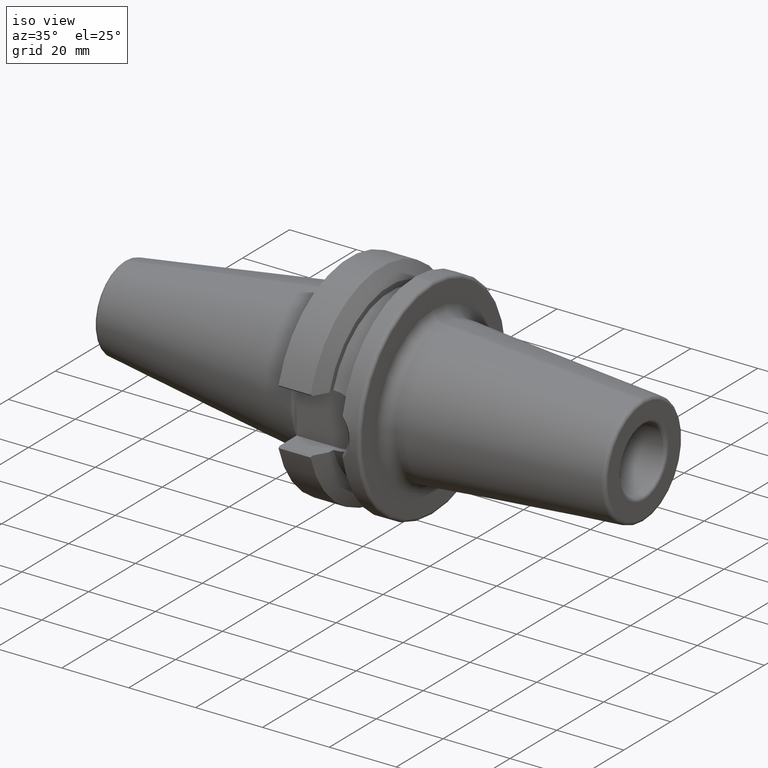
[diagram: clean part render]
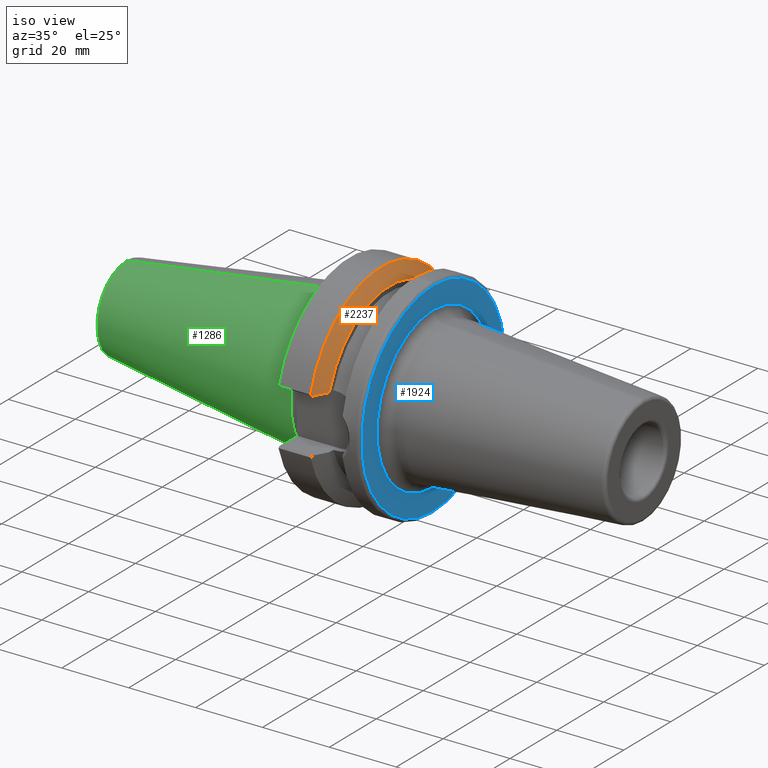
[diagram: same view with three faces highlighted in distinct colors, each labeled with its STEP entity id]
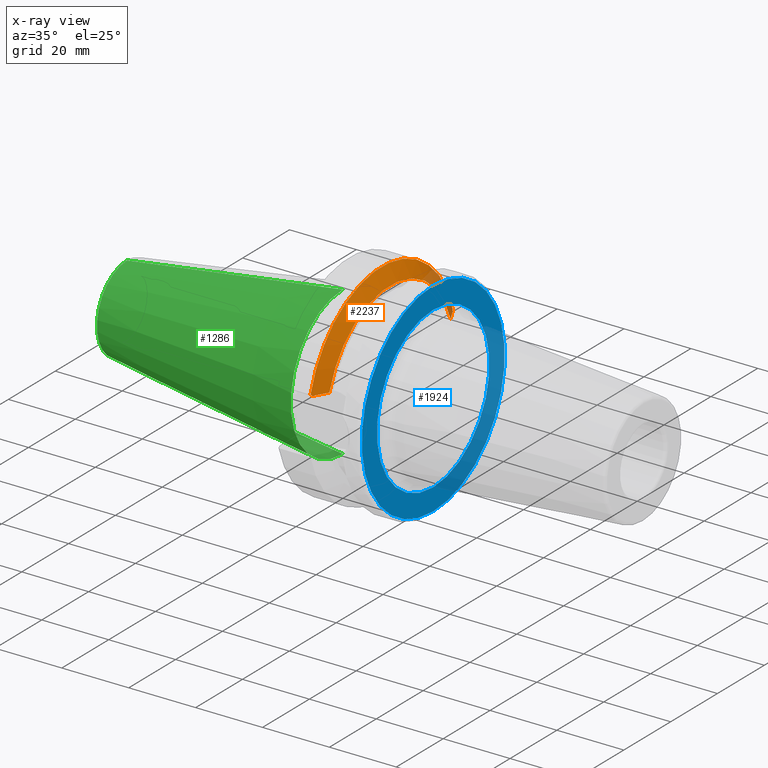
[diagram: x-ray of the same camera — body ghosted, the three highlighted faces saturated]
A machine part, iso view with three faces highlighted in distinct colors.
The next image is the same camera in x-ray (body ghosted, the three faces saturated) — at least one of them is partly hidden behind the body in this view.
Their STEP definitions:

[orange] entity #2237 — the highlighted conical surface has half-angle 60 deg.
#742=CARTESIAN_POINT('',(1.187809346105E1,-2.99E1,8.05E0));
#743=CARTESIAN_POINT('',(1.213608092362E1,-2.943724098956E1,8.05E0));
#744=CARTESIAN_POINT('',(1.264468361145E1,-2.852349489558E1,8.05E0));
#745=CARTESIAN_POINT('',(1.338523875630E1,-2.718836773100E1,8.05E0));
#746=CARTESIAN_POINT('',(1.386422691872E1,-2.632143557624E1,8.05E0));
#747=CARTESIAN_POINT('',(1.41E1,-2.589378524176E1,8.05E0));
#749=CARTESIAN_POINT('',(1.187809346105E1,-2.99E1,8.05E0));
#750=CARTESIAN_POINT('',(1.182713521652E1,-2.997201619131E1,8.122016191313E0));
#751=CARTESIAN_POINT('',(1.172466733692E1,-3.011662367171E1,8.266623671706E0));
#752=CARTESIAN_POINT('',(1.162109709478E1,-3.026238149525E1,8.412381495246E0));
#753=CARTESIAN_POINT('',(1.15690365E1,-3.033554803451E1,8.485548034509E0));
#755=CARTESIAN_POINT('',(1.15690365E1,0.E0,0.E0));
#756=DIRECTION('',(-1.E0,0.E0,0.E0));
#757=DIRECTION('',(0.E0,-9.630332709368E-1,2.693824772860E-1));
#758=AXIS2_PLACEMENT_3D('',#755,#756,#757);
#760=CARTESIAN_POINT('',(1.15690365E1,3.033554803451E1,8.485548034509E0));
#761=CARTESIAN_POINT('',(1.160374372037E1,3.028677012076E1,8.436770120760E0));
#762=CARTESIAN_POINT('',(1.167291318461E1,3.018947011785E1,8.339470117850E0));
#763=CARTESIAN_POINT('',(1.177593175280E1,3.004428820337E1,8.194288203375E0));
#764=CARTESIAN_POINT('',(1.184412122820E1,2.994801089289E1,8.098010892889E0));
#765=CARTESIAN_POINT('',(1.187809346105E1,2.99E1,8.05E0));
#767=CARTESIAN_POINT('',(1.41E1,2.589378524176E1,8.05E0));
#768=CARTESIAN_POINT('',(1.386450321254E1,2.632093442852E1,8.05E0));
#769=CARTESIAN_POINT('',(1.338588549183E1,2.718719892029E1,8.05E0));
#770=CARTESIAN_POINT('',(1.264535440845E1,2.852228833534E1,8.05E0));
#771=CARTESIAN_POINT('',(1.213636912487E1,2.943672403527E1,8.05E0));
#772=CARTESIAN_POINT('',(1.187809346105E1,2.99E1,8.05E0));
#774=CARTESIAN_POINT('',(1.41E1,0.E0,0.E0));
#775=DIRECTION('',(1.E0,0.E0,0.E0));
#776=DIRECTION('',(0.E0,9.549178917964E-1,2.968700387830E-1));
#777=AXIS2_PLACEMENT_3D('',#774,#775,#776);
#1002=CARTESIAN_POINT('',(1.41E1,2.589378524176E1,8.05E0));
#1004=VERTEX_POINT('',#1002);
#1104=VERTEX_POINT('',#760);
#1105=VERTEX_POINT('',#765);
#1122=CARTESIAN_POINT('',(1.15690365E1,-3.033554803451E1,8.485548034509E0));
#1124=VERTEX_POINT('',#1122);
#1138=VERTEX_POINT('',#742);
#1139=VERTEX_POINT('',#747);
#2219=CARTESIAN_POINT('',(1.283451825E1,0.E0,0.E0));
#2220=DIRECTION('',(-1.E0,0.E0,0.E0));
#2221=DIRECTION('',(0.E0,0.E0,-1.E0));
#2222=AXIS2_PLACEMENT_3D('',#2219,#2220,#2221);
#2223=CONICAL_SURFACE('',#2222,2.930812131295E1,6.E1);
#2225=ORIENTED_EDGE('',*,*,#2224,.F.);
#2227=ORIENTED_EDGE('',*,*,#2226,.T.);
#2228=ORIENTED_EDGE('',*,*,#2185,.T.);
#2230=ORIENTED_EDGE('',*,*,#2229,.T.);
#2232=ORIENTED_EDGE('',*,*,#2231,.F.);
#2234=ORIENTED_EDGE('',*,*,#2233,.T.);
#2235=EDGE_LOOP('',(#2225,#2227,#2228,#2230,#2232,#2234));
#2236=FACE_OUTER_BOUND('',#2235,.F.);
#2237=ADVANCED_FACE('',(#2236),#2223,.T.);
#748=B_SPLINE_CURVE_WITH_KNOTS('',3,(#742,#743,#744,#745,#746,#747),
.UNSPECIFIED.,.F.,.F.,(4,1,1,4),(0.E0,3.333333333333E-1,6.666666666667E-1,1.E0),
.UNSPECIFIED.);
#754=B_SPLINE_CURVE_WITH_KNOTS('',3,(#749,#750,#751,#752,#753),.UNSPECIFIED.,
.F.,.F.,(4,1,4),(0.E0,5.E-1,1.E0),.UNSPECIFIED.);
#759=CIRCLE('',#758,3.15E1);
#766=B_SPLINE_CURVE_WITH_KNOTS('',3,(#760,#761,#762,#763,#764,#765),
.UNSPECIFIED.,.F.,.F.,(4,1,1,4),(0.E0,3.333333333333E-1,6.666666666667E-1,1.E0),
.UNSPECIFIED.);
#773=B_SPLINE_CURVE_WITH_KNOTS('',3,(#767,#768,#769,#770,#771,#772),
.UNSPECIFIED.,.F.,.F.,(4,1,1,4),(0.E0,3.333333333333E-1,6.666666666667E-1,1.E0),
.UNSPECIFIED.);
#778=CIRCLE('',#777,2.711624262590E1);
#2185=EDGE_CURVE('',#1124,#1104,#759,.T.);
#2224=EDGE_CURVE('',#1138,#1139,#748,.T.);
#2226=EDGE_CURVE('',#1138,#1124,#754,.T.);
#2229=EDGE_CURVE('',#1104,#1105,#766,.T.);
#2231=EDGE_CURVE('',#1004,#1105,#773,.T.);
#2233=EDGE_CURVE('',#1004,#1139,#778,.T.);

[blue] entity #1924 — the highlighted planar face has unit normal (-1, 0, 0).
#455=CARTESIAN_POINT('',(2.7E1,0.E0,0.E0));
#456=DIRECTION('',(-1.E0,0.E0,0.E0));
#457=DIRECTION('',(0.E0,0.E0,-1.E0));
#458=AXIS2_PLACEMENT_3D('',#455,#456,#457);
#460=CARTESIAN_POINT('',(2.7E1,0.E0,0.E0));
#461=DIRECTION('',(-1.E0,0.E0,0.E0));
#462=DIRECTION('',(0.E0,0.E0,1.E0));
#463=AXIS2_PLACEMENT_3D('',#460,#461,#462);
#465=CARTESIAN_POINT('',(2.7E1,0.E0,0.E0));
#466=DIRECTION('',(1.E0,0.E0,0.E0));
#467=DIRECTION('',(0.E0,0.E0,-1.E0));
#468=AXIS2_PLACEMENT_3D('',#465,#466,#467);
#470=CARTESIAN_POINT('',(2.7E1,0.E0,0.E0));
#471=DIRECTION('',(1.E0,0.E0,0.E0));
#472=DIRECTION('',(0.E0,0.E0,1.E0));
#473=AXIS2_PLACEMENT_3D('',#470,#471,#472);
#1030=CARTESIAN_POINT('',(2.7E1,0.E0,-3.05E1));
#1031=CARTESIAN_POINT('',(2.7E1,0.E0,3.05E1));
#1032=VERTEX_POINT('',#1030);
#1033=VERTEX_POINT('',#1031);
#1221=CARTESIAN_POINT('',(2.7E1,0.E0,-2.4E1));
#1222=CARTESIAN_POINT('',(2.7E1,0.E0,2.4E1));
#1223=VERTEX_POINT('',#1221);
#1224=VERTEX_POINT('',#1222);
#1908=CARTESIAN_POINT('',(2.7E1,0.E0,0.E0));
#1909=DIRECTION('',(-1.E0,0.E0,0.E0));
#1910=DIRECTION('',(0.E0,0.E0,-1.E0));
#1911=AXIS2_PLACEMENT_3D('',#1908,#1909,#1910);
#1912=PLANE('',#1911);
#1914=ORIENTED_EDGE('',*,*,#1913,.T.);
#1916=ORIENTED_EDGE('',*,*,#1915,.T.);
#1917=EDGE_LOOP('',(#1914,#1916));
#1918=FACE_OUTER_BOUND('',#1917,.F.);
#1920=ORIENTED_EDGE('',*,*,#1919,.T.);
#1921=ORIENTED_EDGE('',*,*,#1898,.T.);
#1922=EDGE_LOOP('',(#1920,#1921));
#1923=FACE_BOUND('',#1922,.F.);
#1924=ADVANCED_FACE('',(#1918,#1923),#1912,.F.);
#459=CIRCLE('',#458,3.05E1);
#464=CIRCLE('',#463,3.05E1);
#469=CIRCLE('',#468,2.4E1);
#474=CIRCLE('',#473,2.4E1);
#1898=EDGE_CURVE('',#1224,#1223,#474,.T.);
#1913=EDGE_CURVE('',#1032,#1033,#459,.T.);
#1915=EDGE_CURVE('',#1033,#1032,#464,.T.);
#1919=EDGE_CURVE('',#1223,#1224,#469,.T.);

[green] entity #1286 — the highlighted conical surface has half-angle 8.297 deg.
#20=CARTESIAN_POINT('',(4.547473508865E-13,0.E0,0.E0));
#21=DIRECTION('',(1.E0,0.E0,0.E0));
#22=DIRECTION('',(0.E0,0.E0,1.E0));
#23=AXIS2_PLACEMENT_3D('',#20,#21,#22);
#25=DIRECTION('',(-9.895329824990E-1,-2.390662347400E-10,1.443068832268E-1));
#26=VECTOR('',#25,6.522703944722E1);
#27=CARTESIAN_POINT('',(5.606857200746E-10,1.565092715213E-8,
-2.222499999985E1));
#28=LINE('',#27,#26);
#29=CARTESIAN_POINT('',(-6.454430688323E1,0.E0,0.E0));
#30=DIRECTION('',(-1.E0,0.E0,0.E0));
#31=DIRECTION('',(0.E0,0.E0,-1.E0));
#32=AXIS2_PLACEMENT_3D('',#29,#30,#31);
#34=DIRECTION('',(-9.895329824990E-1,2.390660335631E-10,-1.443068832268E-1));
#35=VECTOR('',#34,6.522703944722E1);
#36=CARTESIAN_POINT('',(5.606857200746E-10,-1.565091853005E-8,
2.222499999985E1));
#37=LINE('',#36,#35);
#1058=CARTESIAN_POINT('',(-6.454430688323E1,0.E0,1.281228923511E1));
#1059=CARTESIAN_POINT('',(-6.454430688323E1,0.E0,-1.281228923511E1));
#1060=VERTEX_POINT('',#1058);
#1061=VERTEX_POINT('',#1059);
#1062=CARTESIAN_POINT('',(4.547473508865E-13,0.E0,2.2225E1));
#1063=CARTESIAN_POINT('',(4.547473508865E-13,0.E0,-2.2225E1));
#1064=VERTEX_POINT('',#1062);
#1065=VERTEX_POINT('',#1063);
#1274=CARTESIAN_POINT('',(-3.227215344161E1,0.E0,0.E0));
#1275=DIRECTION('',(1.E0,0.E0,0.E0));
#1276=DIRECTION('',(0.E0,0.E0,1.E0));
#1277=AXIS2_PLACEMENT_3D('',#1274,#1275,#1276);
#1278=CONICAL_SURFACE('',#1277,1.751864461755E1,8.2971444E0);
#1279=ORIENTED_EDGE('',*,*,#1265,.T.);
#1280=ORIENTED_EDGE('',*,*,#1240,.T.);
#1282=ORIENTED_EDGE('',*,*,#1281,.T.);
#1283=ORIENTED_EDGE('',*,*,#1236,.F.);
#1284=EDGE_LOOP('',(#1279,#1280,#1282,#1283));
#1285=FACE_OUTER_BOUND('',#1284,.F.);
#1286=ADVANCED_FACE('',(#1285),#1278,.T.);
#24=CIRCLE('',#23,2.2225E1);
#33=CIRCLE('',#32,1.281228923511E1);
#1236=EDGE_CURVE('',#1064,#1060,#37,.T.);
#1240=EDGE_CURVE('',#1065,#1061,#28,.T.);
#1265=EDGE_CURVE('',#1064,#1065,#24,.T.);
#1281=EDGE_CURVE('',#1061,#1060,#33,.T.);